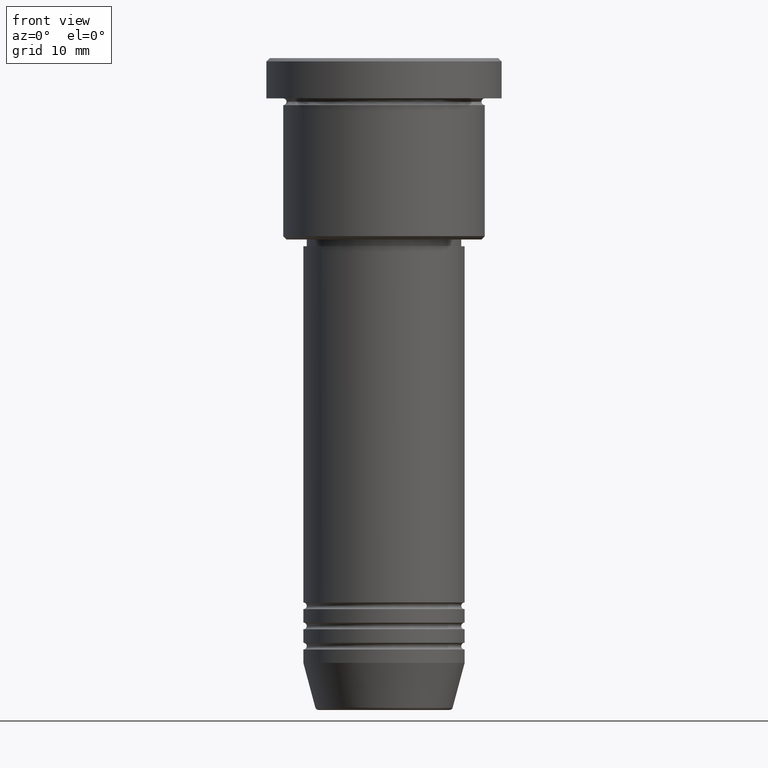
[diagram: clean part render]
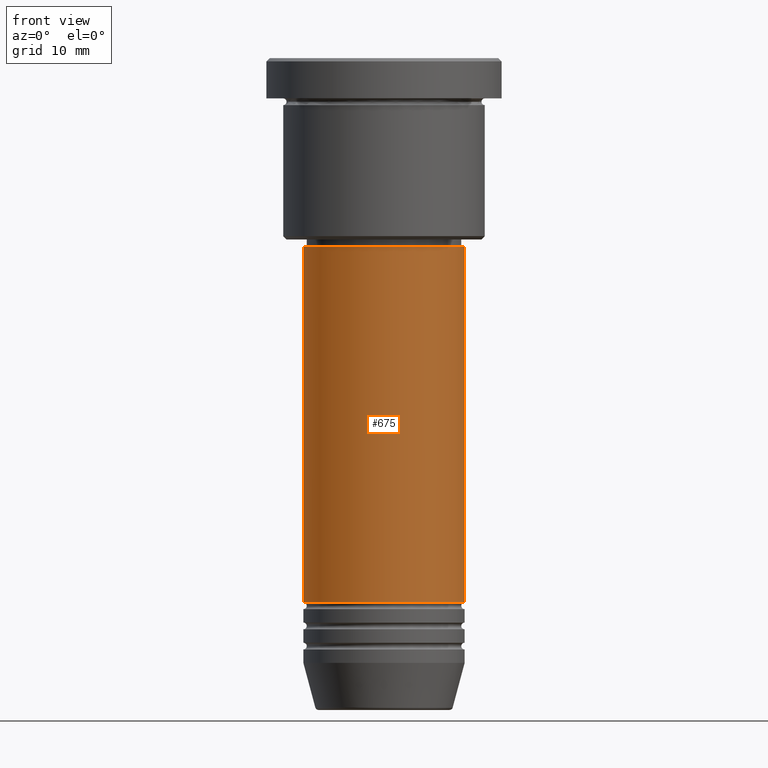
[diagram: same view with one face highlighted and labeled with its STEP entity id]
A machine part, front view. The second image highlights one B-rep face of the part: STEP entity #675.
In plain terms, the highlighted cylindrical surface (partial cylindrical patch) has radius 12 mm, axis along (-0, -0, 1).
Its self-contained STEP definition (entity closure, byte-faithful):
#4 = VERTEX_POINT ( 'NONE', #200 ) ;
#17 = DIRECTION ( 'NONE',  ( -0.000000000000000000, -0.000000000000000000, 1.000000000000000000 ) ) ;
#70 = AXIS2_PLACEMENT_3D ( 'NONE', #1165, #184, #1169 ) ;
#76 = CARTESIAN_POINT ( 'NONE',  ( 12.00000000000000000, 0.000000000000000000, 0.000000000000000000 ) ) ;
#77 = VERTEX_POINT ( 'NONE', #597 ) ;
#97 = DIRECTION ( 'NONE',  ( 1.000000000000000000, 0.000000000000000000, 0.000000000000000000 ) ) ;
#118 = CARTESIAN_POINT ( 'NONE',  ( -12.00000000000000000, 1.469576158976823947E-15, -80.99999999999997158 ) ) ;
#176 = VECTOR ( 'NONE', #525, 1000.000000000000000 ) ;
#184 = DIRECTION ( 'NONE',  ( -0.000000000000000000, -0.000000000000000000, 1.000000000000000000 ) ) ;
#200 = CARTESIAN_POINT ( 'NONE',  ( -12.00000000000000000, 1.469576158976823947E-15, -27.99999999999996803 ) ) ;
#207 = DIRECTION ( 'NONE',  ( -0.000000000000000000, -0.000000000000000000, 1.000000000000000000 ) ) ;
#263 = ORIENTED_EDGE ( 'NONE', *, *, #1024, .F. ) ;
#294 = FACE_OUTER_BOUND ( 'NONE', #524, .T. ) ;
#301 = CARTESIAN_POINT ( 'NONE',  ( 0.000000000000000000, 0.000000000000000000, -27.99999999999996803 ) ) ;
#435 = DIRECTION ( 'NONE',  ( -0.000000000000000000, -0.000000000000000000, 1.000000000000000000 ) ) ;
#524 = EDGE_LOOP ( 'NONE', ( #942, #686, #729, #263 ) ) ;
#525 = DIRECTION ( 'NONE',  ( -0.000000000000000000, -0.000000000000000000, 1.000000000000000000 ) ) ;
#531 = AXIS2_PLACEMENT_3D ( 'NONE', #301, #17, #97 ) ;
#554 = AXIS2_PLACEMENT_3D ( 'NONE', #1009, #207, #568 ) ;
#568 = DIRECTION ( 'NONE',  ( 1.000000000000000000, 0.000000000000000000, 0.000000000000000000 ) ) ;
#597 = CARTESIAN_POINT ( 'NONE',  ( 12.00000000000000000, 0.000000000000000000, -80.99999999999997158 ) ) ;
#625 = LINE ( 'NONE', #76, #649 ) ;
#649 = VECTOR ( 'NONE', #435, 1000.000000000000000 ) ;
#655 = CYLINDRICAL_SURFACE ( 'NONE', #554, 12.00000000000000000 ) ;
#675 = ADVANCED_FACE ( 'NONE', ( #294 ), #655, .T. ) ;
#679 = VERTEX_POINT ( 'NONE', #837 ) ;
#686 = ORIENTED_EDGE ( 'NONE', *, *, #915, .T. ) ;
#713 = EDGE_CURVE ( 'NONE', #1153, #4, #1026, .T. ) ;
#729 = ORIENTED_EDGE ( 'NONE', *, *, #972, .T. ) ;
#837 = CARTESIAN_POINT ( 'NONE',  ( 12.00000000000000000, 0.000000000000000000, -27.99999999999996803 ) ) ;
#854 = CIRCLE ( 'NONE', #531, 12.00000000000000000 ) ;
#915 = EDGE_CURVE ( 'NONE', #1153, #77, #1135, .T. ) ;
#942 = ORIENTED_EDGE ( 'NONE', *, *, #713, .F. ) ;
#958 = CARTESIAN_POINT ( 'NONE',  ( -12.00000000000000000, 1.469576158976823947E-15, 0.000000000000000000 ) ) ;
#972 = EDGE_CURVE ( 'NONE', #77, #679, #625, .T. ) ;
#1009 = CARTESIAN_POINT ( 'NONE',  ( 0.000000000000000000, 0.000000000000000000, 0.000000000000000000 ) ) ;
#1024 = EDGE_CURVE ( 'NONE', #4, #679, #854, .T. ) ;
#1026 = LINE ( 'NONE', #958, #176 ) ;
#1135 = CIRCLE ( 'NONE', #70, 12.00000000000000000 ) ;
#1153 = VERTEX_POINT ( 'NONE', #118 ) ;
#1165 = CARTESIAN_POINT ( 'NONE',  ( 0.000000000000000000, 0.000000000000000000, -80.99999999999997158 ) ) ;
#1169 = DIRECTION ( 'NONE',  ( 1.000000000000000000, 0.000000000000000000, 0.000000000000000000 ) ) ;